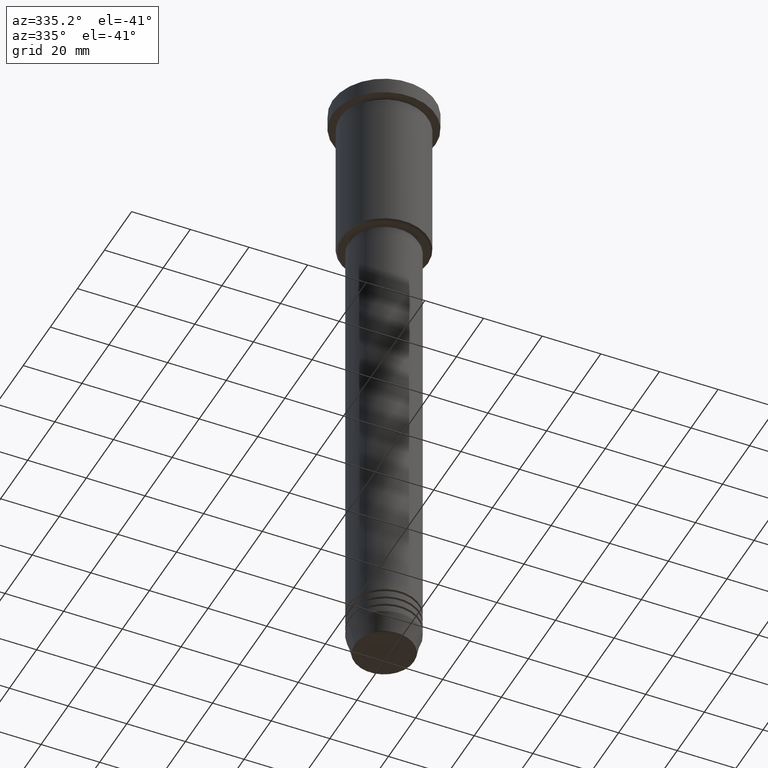
[diagram: clean part render]
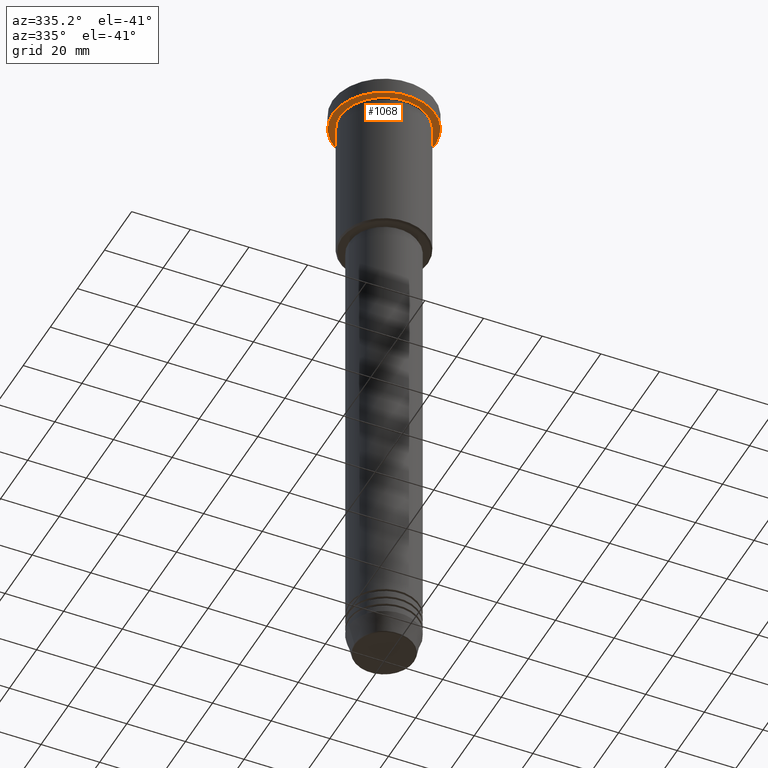
[diagram: same view with one face highlighted and labeled with its STEP entity id]
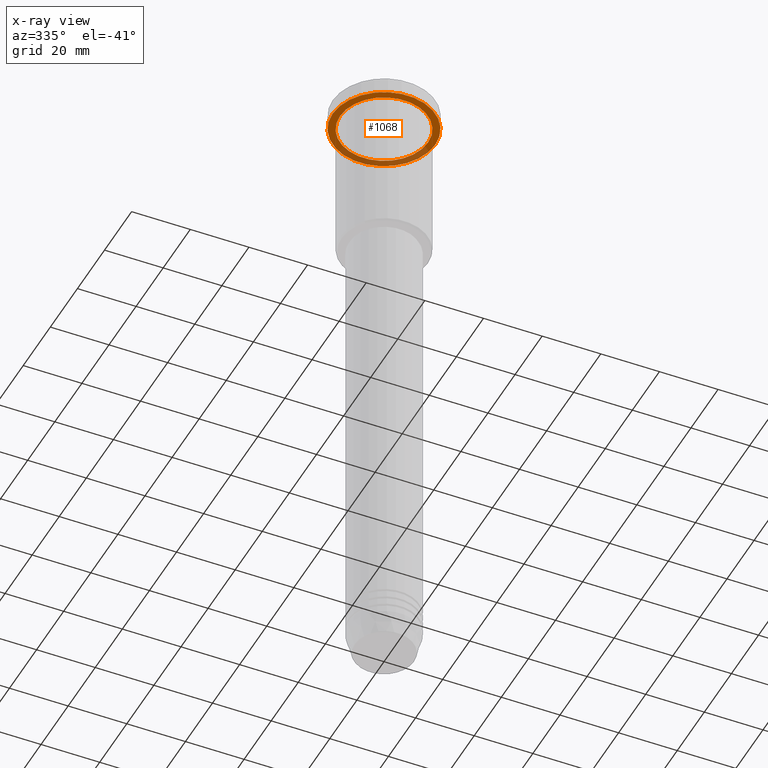
[diagram: x-ray of the same camera — body ghosted, the highlighted face saturated]
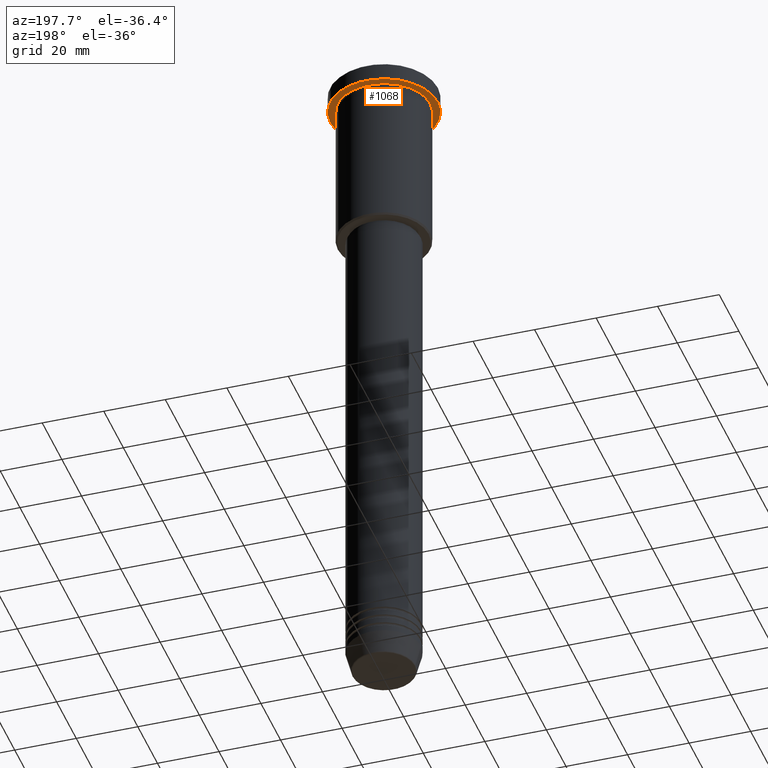
[diagram: same view with one face highlighted and labeled with its STEP entity id]
A machine part, auxiliary view. The second image highlights one B-rep face of the part: STEP entity #1068.
The next image is the same camera in x-ray: the body ghosted, the highlighted face saturated — about 31% of this face is hidden behind the body in this view.
A second angle (auxiliary view) of the same face is appended — the face is thin or edge-on in the first view.
In plain terms, the highlighted planar face has unit normal (0, 0, -1).
Its self-contained STEP definition (entity closure, byte-faithful):
#54 = CARTESIAN_POINT ( 'NONE',  ( 0.000000000000000000, 0.000000000000000000, -5.999999999999995559 ) ) ;
#64 = DIRECTION ( 'NONE',  ( 1.000000000000000000, 0.000000000000000000, 0.000000000000000000 ) ) ;
#70 = AXIS2_PLACEMENT_3D ( 'NONE', #890, #906, #620 ) ;
#77 = CARTESIAN_POINT ( 'NONE',  ( 17.50000000000000000, 0.000000000000000000, -5.999999999999995559 ) ) ;
#134 = EDGE_CURVE ( 'NONE', #835, #481, #897, .T. ) ;
#136 = ORIENTED_EDGE ( 'NONE', *, *, #335, .T. ) ;
#200 = AXIS2_PLACEMENT_3D ( 'NONE', #831, #1101, #647 ) ;
#219 = CARTESIAN_POINT ( 'NONE',  ( -15.00000000000000000, 0.000000000000000000, -5.999999999999994671 ) ) ;
#229 = CARTESIAN_POINT ( 'NONE',  ( -17.50000000000000000, 2.143131898507868248E-15, -5.999999999999995559 ) ) ;
#291 = AXIS2_PLACEMENT_3D ( 'NONE', #873, #894, #64 ) ;
#335 = EDGE_CURVE ( 'NONE', #1171, #839, #656, .T. ) ;
#361 = DIRECTION ( 'NONE',  ( 1.000000000000000000, 0.000000000000000000, 0.000000000000000000 ) ) ;
#374 = CARTESIAN_POINT ( 'NONE',  ( 0.000000000000000000, 0.000000000000000000, -5.999999999999995559 ) ) ;
#378 = DIRECTION ( 'NONE',  ( -1.000000000000000000, 0.000000000000000000, 0.000000000000000000 ) ) ;
#443 = AXIS2_PLACEMENT_3D ( 'NONE', #54, #655, #378 ) ;
#455 = EDGE_CURVE ( 'NONE', #839, #1171, #1095, .T. ) ;
#465 = FACE_BOUND ( 'NONE', #501, .T. ) ;
#481 = VERTEX_POINT ( 'NONE', #77 ) ;
#501 = EDGE_LOOP ( 'NONE', ( #1007, #136 ) ) ;
#620 = DIRECTION ( 'NONE',  ( -1.000000000000000000, 0.000000000000000000, 0.000000000000000000 ) ) ;
#647 = DIRECTION ( 'NONE',  ( -1.000000000000000000, 0.000000000000000000, -0.000000000000000000 ) ) ;
#655 = DIRECTION ( 'NONE',  ( -0.000000000000000000, -0.000000000000000000, 1.000000000000000000 ) ) ;
#656 = CIRCLE ( 'NONE', #443, 15.00000000000000000 ) ;
#731 = PLANE ( 'NONE',  #200 ) ;
#746 = AXIS2_PLACEMENT_3D ( 'NONE', #374, #1179, #361 ) ;
#758 = EDGE_LOOP ( 'NONE', ( #1009, #993 ) ) ;
#804 = CIRCLE ( 'NONE', #291, 17.50000000000000000 ) ;
#831 = CARTESIAN_POINT ( 'NONE',  ( 0.000000000000000000, 17.50000000000000000, -5.999999999999995559 ) ) ;
#835 = VERTEX_POINT ( 'NONE', #229 ) ;
#839 = VERTEX_POINT ( 'NONE', #219 ) ;
#873 = CARTESIAN_POINT ( 'NONE',  ( 0.000000000000000000, 0.000000000000000000, -5.999999999999995559 ) ) ;
#890 = CARTESIAN_POINT ( 'NONE',  ( 0.000000000000000000, 0.000000000000000000, -5.999999999999995559 ) ) ;
#894 = DIRECTION ( 'NONE',  ( -0.000000000000000000, -0.000000000000000000, 1.000000000000000000 ) ) ;
#897 = CIRCLE ( 'NONE', #746, 17.50000000000000000 ) ;
#906 = DIRECTION ( 'NONE',  ( -0.000000000000000000, -0.000000000000000000, 1.000000000000000000 ) ) ;
#993 = ORIENTED_EDGE ( 'NONE', *, *, #134, .F. ) ;
#995 = EDGE_CURVE ( 'NONE', #481, #835, #804, .T. ) ;
#1007 = ORIENTED_EDGE ( 'NONE', *, *, #455, .T. ) ;
#1009 = ORIENTED_EDGE ( 'NONE', *, *, #995, .F. ) ;
#1068 = ADVANCED_FACE ( 'NONE', ( #465, #1112 ), #731, .T. ) ;
#1095 = CIRCLE ( 'NONE', #70, 15.00000000000000000 ) ;
#1101 = DIRECTION ( 'NONE',  ( 0.000000000000000000, 0.000000000000000000, -1.000000000000000000 ) ) ;
#1112 = FACE_OUTER_BOUND ( 'NONE', #758, .T. ) ;
#1140 = CARTESIAN_POINT ( 'NONE',  ( 15.00000000000000000, 1.836970198721029589E-15, -5.999999999999994671 ) ) ;
#1171 = VERTEX_POINT ( 'NONE', #1140 ) ;
#1179 = DIRECTION ( 'NONE',  ( -0.000000000000000000, -0.000000000000000000, 1.000000000000000000 ) ) ;